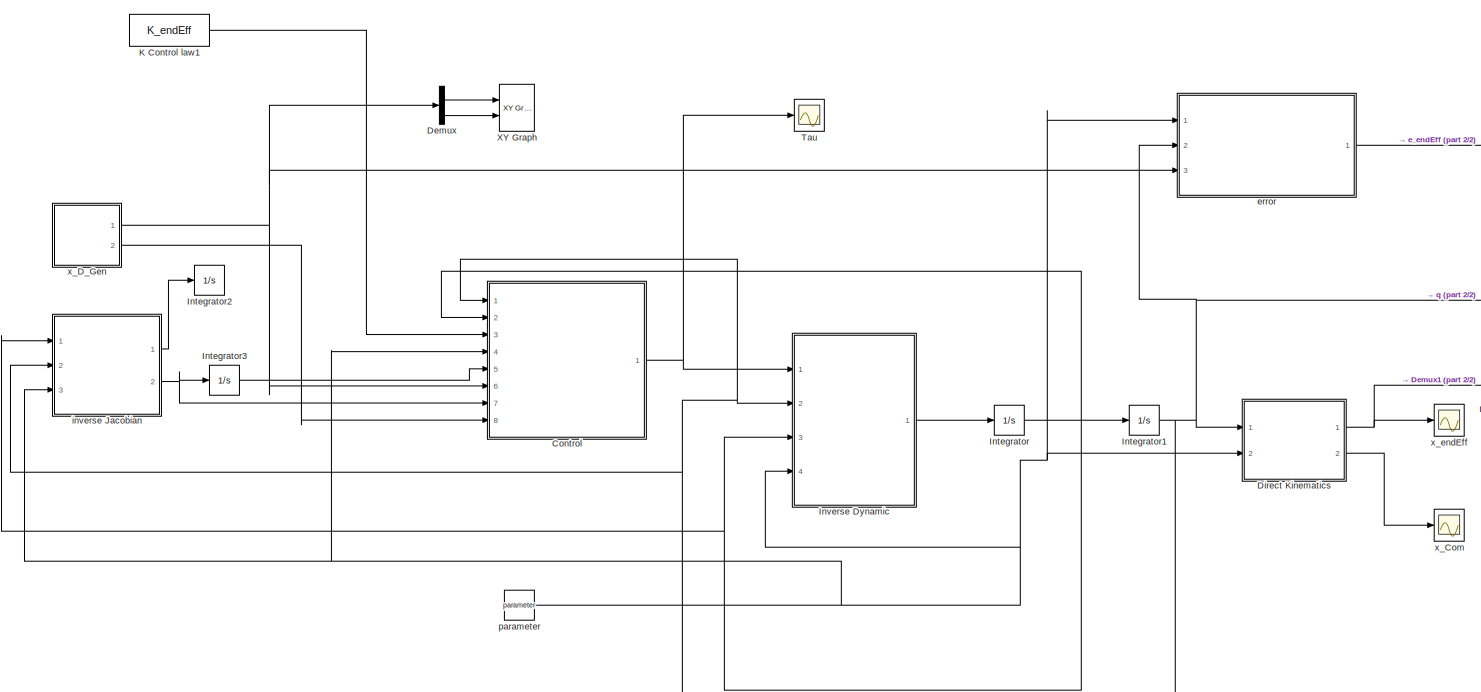
[diagram: root canvas - part 1/2, most of the canvas]
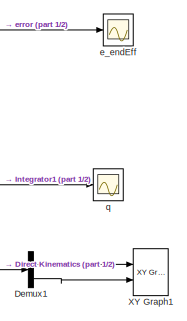
[diagram: root canvas - part 2/2, middle right region]
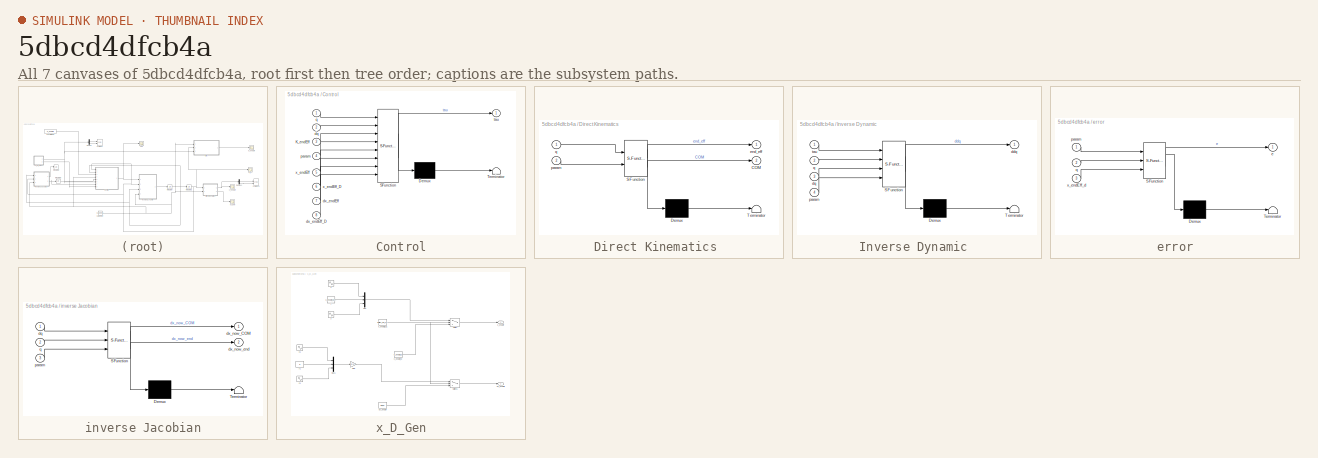
[diagram: thumbnail index - all 7 canvases of the model, root first then tree order]
MODEL slx_5dbcd4dfcb4a
KIND model
CONFIG AbsTol = auto
CONFIG EnableMultiTasking = off
CONFIG FixedStep = auto
CONFIG MaxStep = auto
CONFIG MinStep = auto
CONFIG RelTol = 1e-3
CONFIG SampleTimeConstraint = Unconstrained
CONFIG Solver = VariableStepAuto
CONFIG SolverName = VariableStepAuto
CONFIG StartTime = 0.0
CONFIG StopTime = 20
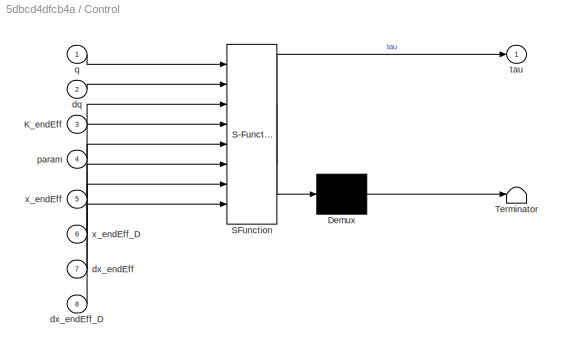
BLOCK [SubSystem] Control
  ErrorFcn = Stateflow.Translate.translate
  PermitHierarchicalResolution = ExplicitOnly
  Ports = [8, 1]
  RequestExecContextInheritance = off
  SFBlockType = MATLAB Function
  TreatAsAtomicUnit = on
BLOCK [Demux] Control/ Demux 
  Outputs = 1
  Ports = [1, 1]
BLOCK [S-Function] Control/ SFunction 
  EnableBusSupport = off
  FunctionName = sf_sfun
  PortCounts = [8 2]
  Ports = [8, 2]
  SFcnIsStateOwnerBlock = off
  SFunctionDeploymentMode = off
  Tag = Stateflow S-Function 4
BLOCK [Terminator] Control/ Terminator 
BLOCK [Inport] Control/K_endEff
  IconDisplay = Port number
  Port = 3
BLOCK [Inport] Control/dq
  IconDisplay = Port number
  Port = 2
BLOCK [Inport] Control/dx_endEff
  IconDisplay = Port number
  Port = 7
BLOCK [Inport] Control/dx_endEff_D
  IconDisplay = Port number
  Port = 8
BLOCK [Inport] Control/param
  IconDisplay = Port number
  Port = 4
BLOCK [Inport] Control/q
  IconDisplay = Port number
BLOCK [Outport] Control/tau
  IconDisplay = Port number
  VectorParamsAs1DForOutWhenUnconnected = off
BLOCK [Inport] Control/x_endEff
  IconDisplay = Port number
  Port = 5
BLOCK [Inport] Control/x_endEff_D
  IconDisplay = Port number
  Port = 6
BLOCK [Demux] Demux
  DisplayOption = bar
  Outputs = 3
  Ports = [1, 3]
BLOCK [Demux] Demux1
  DisplayOption = bar
  Outputs = 3
  Ports = [1, 3]
BLOCK [SubSystem] Direct Kinematics 
  ErrorFcn = Stateflow.Translate.translate
  PermitHierarchicalResolution = ExplicitOnly
  Ports = [2, 2]
  RequestExecContextInheritance = off
  SFBlockType = MATLAB Function
  TreatAsAtomicUnit = on
BLOCK [Demux] Direct Kinematics / Demux 
  Outputs = 1
  Ports = [1, 1]
BLOCK [S-Function] Direct Kinematics / SFunction 
  EnableBusSupport = off
  FunctionName = sf_sfun
  PortCounts = [2 3]
  Ports = [2, 3]
  SFcnIsStateOwnerBlock = off
  SFunctionDeploymentMode = off
  Tag = Stateflow S-Function 1
BLOCK [Terminator] Direct Kinematics / Terminator 
BLOCK [Outport] Direct Kinematics /COM
  IconDisplay = Port number
  Port = 2
  VectorParamsAs1DForOutWhenUnconnected = off
BLOCK [Outport] Direct Kinematics /end_eff
  IconDisplay = Port number
  VectorParamsAs1DForOutWhenUnconnected = off
BLOCK [Inport] Direct Kinematics /param
  IconDisplay = Port number
  Port = 2
BLOCK [Inport] Direct Kinematics /q
  IconDisplay = Port number
BLOCK [Integrator] Integrator
  InitialCondition = [0,0,0,0,0,0]'
  Ports = [1, 1]
BLOCK [Integrator] Integrator1
  InitialCondition = [0,0,0,0,0,0]'
  Ports = [1, 1]
BLOCK [Integrator] Integrator2
  InitialCondition = x_COM0
  Ports = [1, 1]
BLOCK [Integrator] Integrator3
  InitialCondition = x_endEff0
  Ports = [1, 1]
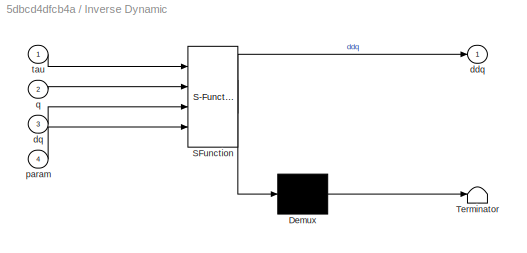
BLOCK [SubSystem] Inverse Dynamic 
  ErrorFcn = Stateflow.Translate.translate
  PermitHierarchicalResolution = ExplicitOnly
  Ports = [4, 1]
  RequestExecContextInheritance = off
  SFBlockType = MATLAB Function
  TreatAsAtomicUnit = on
BLOCK [Demux] Inverse Dynamic / Demux 
  Outputs = 1
  Ports = [1, 1]
BLOCK [S-Function] Inverse Dynamic / SFunction 
  EnableBusSupport = off
  FunctionName = sf_sfun
  PortCounts = [4 2]
  Ports = [4, 2]
  SFcnIsStateOwnerBlock = off
  SFunctionDeploymentMode = off
  Tag = Stateflow S-Function 2
BLOCK [Terminator] Inverse Dynamic / Terminator 
BLOCK [Outport] Inverse Dynamic /ddq
  IconDisplay = Port number
  VectorParamsAs1DForOutWhenUnconnected = off
BLOCK [Inport] Inverse Dynamic /dq
  IconDisplay = Port number
  Port = 3
BLOCK [Inport] Inverse Dynamic /param
  IconDisplay = Port number
  Port = 4
BLOCK [Inport] Inverse Dynamic /q
  IconDisplay = Port number
  Port = 2
BLOCK [Inport] Inverse Dynamic /tau
  IconDisplay = Port number
BLOCK [Constant] K Control law1
  Value = K_endEff
BLOCK [Scope] Tau
  Floating = off
  NumInputPorts = 1
  Ports = [1]
  ScopeSpecificationString = Simulink.scopes.TimeScopeBlockCfg('CurrentConfiguration', extmgr.ConfigurationSet(extmgr.Configuration('Core','General UI',true),extmgr.Configuration('Core','Source UI',true),extmgr.Configuration('Sources','WiredSimulink',true,'DataLoggingVariableName','ScopeData2'),extmgr.Configuration('Visuals','Time Domain',true,'SerializedDisplays',{struct('MinYLimReal','-1772.50697','MaxYLimReal','1978.08257'...<+1450ch>
BLOCK [Reference] XY Graph  REF=simulink/Sinks/XY Graph
  Ports = [2]
  SourceBlock = simulink/Sinks/XY Graph
  SourceProductBaseCode = SL
  SourceProductName = Simulink
  SourceType = XY scope.
BLOCK [Reference] XY Graph1  REF=simulink/Sinks/XY Graph
  Ports = [2]
  SourceBlock = simulink/Sinks/XY Graph
  SourceProductBaseCode = SL
  SourceProductName = Simulink
  SourceType = XY scope.
BLOCK [Scope] e_endEff
  Floating = off
  NumInputPorts = 1
  Ports = [1]
  ScopeSpecificationString = Simulink.scopes.TimeScopeBlockCfg('CurrentConfiguration', extmgr.ConfigurationSet(extmgr.Configuration('Core','General UI',true),extmgr.Configuration('Core','Source UI',true),extmgr.Configuration('Sources','WiredSimulink',true,'DataLoggingVariableName','ScopeData3'),extmgr.Configuration('Visuals','Time Domain',true,'SerializedDisplays',{struct('MinYLimReal','-0.11626','MaxYLimReal','0.09841','YLab...<+1435ch>
BLOCK [SubSystem] error
  ErrorFcn = Stateflow.Translate.translate
  PermitHierarchicalResolution = ExplicitOnly
  Ports = [3, 1]
  RequestExecContextInheritance = off
  SFBlockType = MATLAB Function
  TreatAsAtomicUnit = on
BLOCK [Demux] error/ Demux 
  Outputs = 1
  Ports = [1, 1]
BLOCK [S-Function] error/ SFunction 
  EnableBusSupport = off
  FunctionName = sf_sfun
  PortCounts = [3 2]
  Ports = [3, 2]
  SFcnIsStateOwnerBlock = off
  SFunctionDeploymentMode = off
  Tag = Stateflow S-Function 5
BLOCK [Terminator] error/ Terminator 
BLOCK [Outport] error/e
  IconDisplay = Port number
  VectorParamsAs1DForOutWhenUnconnected = off
BLOCK [Inport] error/param
  IconDisplay = Port number
BLOCK [Inport] error/q
  IconDisplay = Port number
  Port = 2
BLOCK [Inport] error/x_endEff_d
  IconDisplay = Port number
  Port = 3
BLOCK [SubSystem] inverse Jacobian
  ErrorFcn = Stateflow.Translate.translate
  PermitHierarchicalResolution = ExplicitOnly
  Ports = [3, 2]
  RequestExecContextInheritance = off
  SFBlockType = MATLAB Function
  TreatAsAtomicUnit = on
BLOCK [Demux] inverse Jacobian/ Demux 
  Outputs = 1
  Ports = [1, 1]
BLOCK [S-Function] inverse Jacobian/ SFunction 
  EnableBusSupport = off
  FunctionName = sf_sfun
  PortCounts = [3 3]
  Ports = [3, 3]
  SFcnIsStateOwnerBlock = off
  SFunctionDeploymentMode = off
  Tag = Stateflow S-Function 3
BLOCK [Terminator] inverse Jacobian/ Terminator 
BLOCK [Inport] inverse Jacobian/dq
  IconDisplay = Port number
BLOCK [Outport] inverse Jacobian/dx_now_COM
  IconDisplay = Port number
  VectorParamsAs1DForOutWhenUnconnected = off
BLOCK [Outport] inverse Jacobian/dx_now_end
  IconDisplay = Port number
  Port = 2
  VectorParamsAs1DForOutWhenUnconnected = off
BLOCK [Inport] inverse Jacobian/param
  IconDisplay = Port number
  Port = 3
BLOCK [Inport] inverse Jacobian/q
  IconDisplay = Port number
  Port = 2
BLOCK [Constant] parameter 
  Value = parameter
BLOCK [Scope] q
  Floating = off
  NumInputPorts = 1
  Ports = [1]
  ScopeSpecificationString = Simulink.scopes.TimeScopeBlockCfg('CurrentConfiguration', extmgr.ConfigurationSet(extmgr.Configuration('Core','General UI',true),extmgr.Configuration('Core','Source UI',true),extmgr.Configuration('Sources','WiredSimulink',true,'DataLoggingVariableName','ScopeData5'),extmgr.Configuration('Visuals','Time Domain',true,'SerializedDisplays',{struct('MinYLimReal','-3.16285','MaxYLimReal','3.57292','YLab...<+1481ch>
BLOCK [Scope] x_Com
  Floating = off
  NumInputPorts = 1
  Ports = [1]
  ScopeSpecificationString = Simulink.scopes.TimeScopeBlockCfg('CurrentConfiguration', extmgr.ConfigurationSet(extmgr.Configuration('Core','General UI',true),extmgr.Configuration('Core','Source UI',true),extmgr.Configuration('Sources','WiredSimulink',true,'DataLoggingVariableName','ScopeData1'),extmgr.Configuration('Visuals','Time Domain',true,'SerializedDisplays',{struct('MinYLimReal','-0.13711','MaxYLimReal','0.50806','YLab...<+1437ch>
BLOCK [SubSystem] x_D_Gen
  Ports = [0, 2]
  RequestExecContextInheritance = off
BLOCK [Gain] x_D_Gen/Gain
  Gain = 1/(2*pi*f_sin)
  OutDataTypeStr = Inherit: Inherit via internal rule
  ParamDataTypeStr = Inherit: Inherit via internal rule
  SaturateOnIntegerOverflow = off
BLOCK [Mux] x_D_Gen/Mux
  DisplayOption = bar
  Inputs = 3
  Ports = [3, 1]
BLOCK [Mux] x_D_Gen/Mux1
  DisplayOption = bar
  Inputs = 3
  Ports = [3, 1]
BLOCK [Switch] x_D_Gen/Switch
  Criteria = u2 > Threshold
  InputSameDT = off
  SaturateOnIntegerOverflow = off
BLOCK [Switch] x_D_Gen/Switch1
  Criteria = u2 > Threshold
  InputSameDT = off
  SaturateOnIntegerOverflow = off
BLOCK [Constant] x_D_Gen/dx_endEff
  Value = [0;0;0]
BLOCK [Outport] x_D_Gen/dx_endEff1
  IconDisplay = Port number
  Port = 2
  VectorParamsAs1DForOutWhenUnconnected = off
BLOCK [Sin] x_D_Gen/x
  Amplitude = A_sin
  Bias = x_endEff_D(1)
  Frequency = f_sin
  Phase = -pi/2
  Ports = [0, 1]
  SampleTime = 0
BLOCK [Sin] x_D_Gen/x1
  Amplitude = -A_sin
  Frequency = f_sin
  Ports = [0, 1]
  SampleTime = 0
BLOCK [Outport] x_D_Gen/x_endEff
  IconDisplay = Port number
  VectorParamsAs1DForOutWhenUnconnected = off
BLOCK [Constant] x_D_Gen/x_endEff_D
  Value = x_endEff_D
BLOCK [Constant] x_D_Gen/x_endEff_D1
  Value = Switch_PD_OBJ
BLOCK [Constant] x_D_Gen/y
  Value = x_endEff_D(2)
BLOCK [Constant] x_D_Gen/y1
  Value = 0
BLOCK [Sin] x_D_Gen/z
  Amplitude = A_sin
  Bias = x_endEff_D(3)
  Frequency = f_sin
  Ports = [0, 1]
  SampleTime = 0
BLOCK [Sin] x_D_Gen/z1
  Amplitude = A_sin
  Frequency = f_sin
  Phase = -pi/2
  Ports = [0, 1]
  SampleTime = 0
BLOCK [Scope] x_endEff
  Floating = off
  NumInputPorts = 1
  Ports = [1]
  ScopeSpecificationString = Simulink.scopes.TimeScopeBlockCfg('CurrentConfiguration', extmgr.ConfigurationSet(extmgr.Configuration('Core','General UI',true),extmgr.Configuration('Core','Source UI',true),extmgr.Configuration('Sources','WiredSimulink',true),extmgr.Configuration('Visuals','Time Domain',true,'SerializedDisplays',{struct('MinYLimReal','-2.40744','MaxYLimReal','4.0495','YLabelReal','','MinYLimMag','0.00000','MaxYL...<+1406ch>
NET Control:1 -> Inverse Dynamic :1, Tau:1
LINE Demux1:1 -> XY Graph1:1
LINE Demux1:3 -> XY Graph1:2
LINE Demux:1 -> XY Graph:1
LINE Demux:3 -> XY Graph:2
NET Direct Kinematics :1 -> Demux1:1, x_endEff:1
LINE Direct Kinematics :2 -> x_Com:1
NET Integrator1:1 -> Control:1, Direct Kinematics :1, Inverse Dynamic :2, error:2, inverse Jacobian:2, q:1
LINE Integrator3:1 -> Control:5
NET Integrator:1 -> Control:2, Integrator1:1, Inverse Dynamic :3, inverse Jacobian:1
LINE Inverse Dynamic :1 -> Integrator:1
LINE K Control law1:1 -> Control:3
LINE error:1 -> e_endEff:1
LINE inverse Jacobian:1 -> Integrator2:1
NET inverse Jacobian:2 -> Control:7, Integrator3:1
NET parameter :1 -> Control:4, Direct Kinematics :2, Inverse Dynamic :4, error:1, inverse Jacobian:3
LINE x_D_Gen/Gain:1 -> x_D_Gen/Switch1:1
LINE x_D_Gen/Mux1:1 -> x_D_Gen/Gain:1
LINE x_D_Gen/Mux:1 -> x_D_Gen/Switch:1
LINE x_D_Gen/Switch1:1 -> x_D_Gen/dx_endEff1:1
LINE x_D_Gen/Switch:1 -> x_D_Gen/x_endEff:1
LINE x_D_Gen/dx_endEff:1 -> x_D_Gen/Switch1:3
LINE x_D_Gen/x1:1 -> x_D_Gen/Mux1:1
LINE x_D_Gen/x:1 -> x_D_Gen/Mux:1
NET x_D_Gen/x_endEff_D1:1 -> x_D_Gen/Switch1:2, x_D_Gen/Switch:2
LINE x_D_Gen/x_endEff_D:1 -> x_D_Gen/Switch:3
LINE x_D_Gen/y1:1 -> x_D_Gen/Mux1:2
LINE x_D_Gen/y:1 -> x_D_Gen/Mux:2
LINE x_D_Gen/z1:1 -> x_D_Gen/Mux1:3
LINE x_D_Gen/z:1 -> x_D_Gen/Mux:3
NET x_D_Gen:1 -> Control:6, Demux:1, error:3
LINE x_D_Gen:2 -> Control:8
note: NET lines group one-source signal fan-out (src -> all destinations, sorted); 1:1 wires keep LINE
CHART Direct Kinematics
 states=1 transitions=1
  STATE_LABEL 'eML_blk_kernel()'
  STATE_LABEL 'SCRIPT:\nfunction [end_eff, COM] = DirectK(q,param)\n\n\n    [Pcom, Etip,T00,T01,T12,T23,T34,T45,T56] =  forwardKinematics(param, q);\n    \n    \n    end_eff = Etip(1:3,4);\n    COM = Pcom;\n    \nend'
CHART Inverse Dynamic
 states=1 transitions=1
  STATE_LABEL 'eML_blk_kernel()'
  STATE_LABEL 'SCRIPT:\nfunction ddq = inverseDynamic(tau,q,dq,param)\n\n% B_f(q,param)\n    B = B_f(q, param);\n    G = G_f(q, param);\n    C = C_f(q, dq, param);\n    \n    ddq = pinv(B)*(tau - G - C*dq);\n\nend\n'
CHART inverse Jacobian states=1 transitions=1
  STATE_LABEL 'eML_blk_kernel()'
  STATE_LABEL 'SCRIPT:\nfunction [dx_now_COM,dx_now_end] = x_now(dq,q,param)\n\n    dx_now_COM = JacobianCom(param, q)*dq;\n    dx_now_end = JacobianEndEff(param, q)*dq;\nend'
CHART Control states=1 transitions=1
  STATE_LABEL 'eML_blk_kernel()'
  STATE_LABEL 'SCRIPT:\nfunction tau  = x_now(q, dq, K_endEff, param, x_endEff, x_endEff_D, dx_endEff, dx_endEff_D)\n    \n    Kp_endEff = K_endEff(1);\n    Kd_endEff = K_endEff(2);\n      \n    J_endEff = JacobianEndEff(param, q);\n    G = G_f(q,param);\n\n    %% controllo priorità di task\n    %J_endEff_pinv = pinv(J_endEff);\n    %J_COM = JacobianCom(param,q);\n    %P_endEff = (eye(6) - J_endEff_pinv*J_endEff); %PROIEZIO...<+409ch>'
CHART error states=1 transitions=1
  STATE_LABEL 'eML_blk_kernel()'
  STATE_LABEL 'SCRIPT:\nfunction e  = error(param, q, x_endEff_d)\n\n\n    [Pcom, Etip,T00,T01,T12,T23,T34,T45,T56] =  forwardKinematics(param, q);\n    x_endEff_now = Etip(1:3,4);\n    x_COM = Pcom;\n    \n    e = x_endEff_d - x_endEff_now;\nend'
